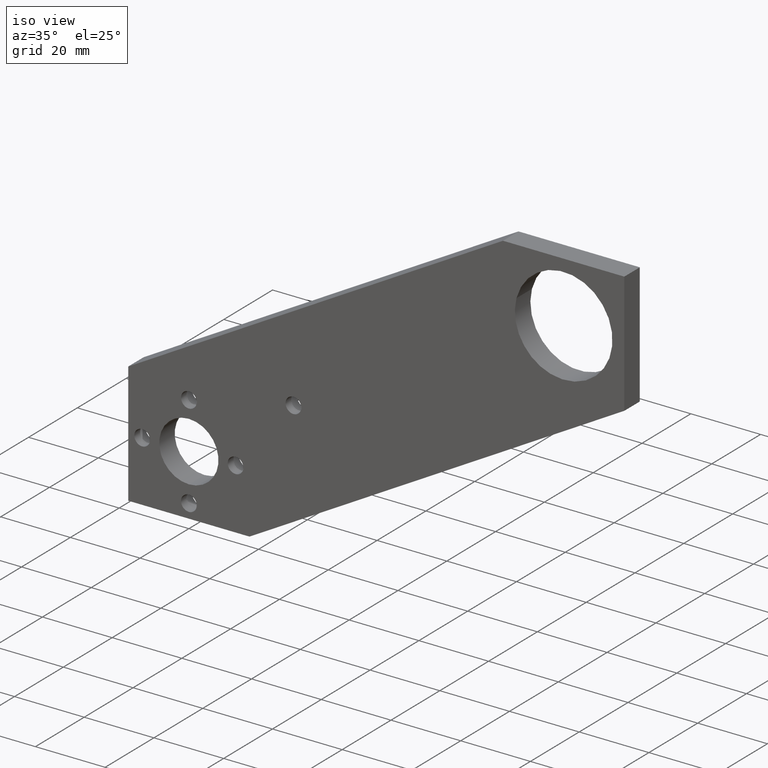
[diagram: clean part render]
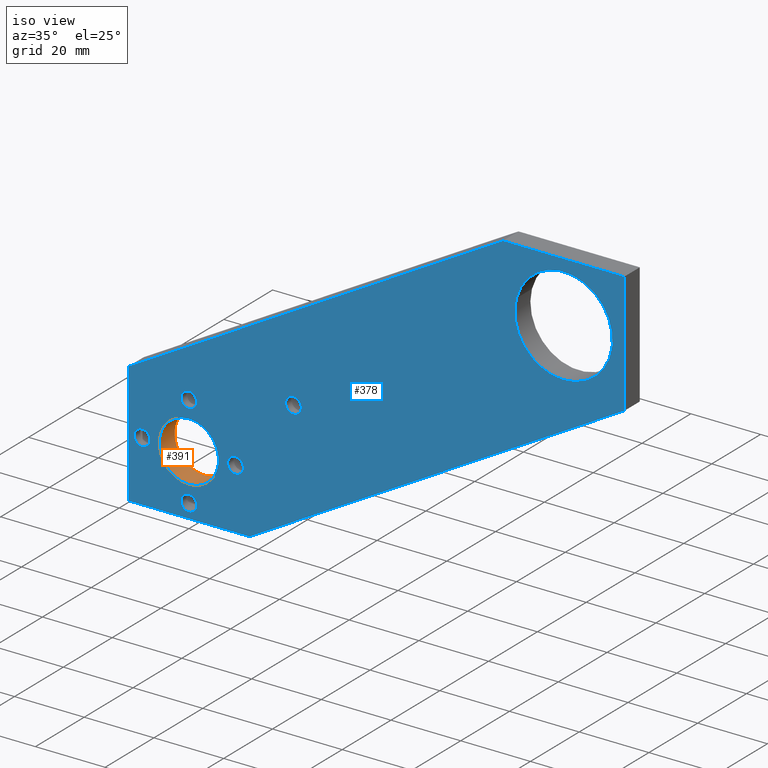
[diagram: same view with the hole feature highlighted: cylindrical wall and planar end face, labeled with their STEP entity ids]
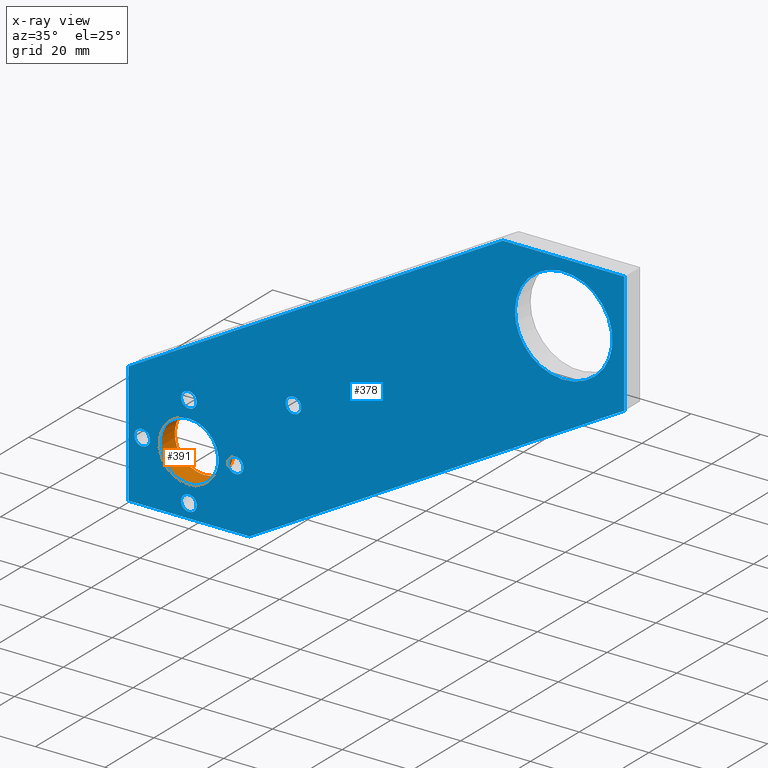
[diagram: x-ray of the same camera — body ghosted, the hole faces saturated]
A machine part, iso view. The highlighted faces form one hole feature of diameter 17 mm: the cylindrical wall (entity #391, orange) and its adjacent planar end face (entity #378, blue) — they share a circular edge in the B-rep.
The next image is the same camera in x-ray (body ghosted, the hole faces saturated) — the bore reads through the body.
Wall:
#85=FACE_BOUND('',#156,.T.);
#112=FACE_OUTER_BOUND('',#155,.T.);
#155=EDGE_LOOP('',(#324));
#156=EDGE_LOOP('',(#325));
#186=CIRCLE('',#419,8.5);
#202=CIRCLE('',#448,8.5);
#216=VERTEX_POINT('',#606);
#235=VERTEX_POINT('',#659);
#252=EDGE_CURVE('',#216,#216,#186,.T.);
#273=EDGE_CURVE('',#235,#235,#202,.T.);
#324=ORIENTED_EDGE('',*,*,#273,.T.);
#325=ORIENTED_EDGE('',*,*,#252,.F.);
#376=CYLINDRICAL_SURFACE('',#447,8.5);
#391=ADVANCED_FACE('',(#112,#85),#376,.F.);
#419=AXIS2_PLACEMENT_3D('',#607,#485,#486);
#447=AXIS2_PLACEMENT_3D('',#658,#546,#547);
#448=AXIS2_PLACEMENT_3D('',#660,#548,#549);
#485=DIRECTION('center_axis',(0.,1.,0.));
#486=DIRECTION('ref_axis',(0.,0.,1.));
#546=DIRECTION('center_axis',(0.,-1.,0.));
#547=DIRECTION('ref_axis',(0.,0.,-1.));
#548=DIRECTION('center_axis',(0.,1.,0.));
#549=DIRECTION('ref_axis',(0.,0.,1.));
#606=CARTESIAN_POINT('',(0.,0.,-8.5));
#607=CARTESIAN_POINT('Origin',(0.,0.,0.));
#658=CARTESIAN_POINT('Origin',(0.,6.35,0.));
#659=CARTESIAN_POINT('',(0.,6.35,-8.5));
#660=CARTESIAN_POINT('Origin',(0.,6.35,0.));
End face:
#18=LINE('',#586,#36);
#19=LINE('',#588,#37);
#20=LINE('',#590,#38);
#21=LINE('',#592,#39);
#22=LINE('',#594,#40);
#23=LINE('',#595,#41);
#36=VECTOR('',#469,1000.);
#37=VECTOR('',#470,1000.);
#38=VECTOR('',#471,1000.);
#39=VECTOR('',#472,1000.);
#40=VECTOR('',#473,10.);
#41=VECTOR('',#474,10.);
#54=PLANE('',#413);
#68=FACE_BOUND('',#126,.T.);
#69=FACE_BOUND('',#127,.T.);
#70=FACE_BOUND('',#128,.T.);
#71=FACE_BOUND('',#129,.T.);
#72=FACE_BOUND('',#130,.T.);
#73=FACE_BOUND('',#131,.T.);
#74=FACE_BOUND('',#132,.T.);
#99=FACE_OUTER_BOUND('',#125,.T.);
#125=EDGE_LOOP('',(#283,#284,#285,#286,#287,#288));
#126=EDGE_LOOP('',(#289));
#127=EDGE_LOOP('',(#290));
#128=EDGE_LOOP('',(#291));
#129=EDGE_LOOP('',(#292));
#130=EDGE_LOOP('',(#293));
#131=EDGE_LOOP('',(#294));
#132=EDGE_LOOP('',(#295));
#179=CIRCLE('',#411,14.);
#181=CIRCLE('',#414,2.25);
#182=CIRCLE('',#415,2.25);
#183=CIRCLE('',#416,2.25);
#184=CIRCLE('',#417,2.25);
#185=CIRCLE('',#418,2.25);
#186=CIRCLE('',#419,8.5);
#203=VERTEX_POINT('',#579);
#205=VERTEX_POINT('',#584);
#206=VERTEX_POINT('',#585);
#207=VERTEX_POINT('',#587);
#208=VERTEX_POINT('',#589);
#209=VERTEX_POINT('',#591);
#210=VERTEX_POINT('',#593);
#211=VERTEX_POINT('',#596);
#212=VERTEX_POINT('',#598);
#213=VERTEX_POINT('',#600);
#214=VERTEX_POINT('',#602);
#215=VERTEX_POINT('',#604);
#216=VERTEX_POINT('',#606);
#239=EDGE_CURVE('',#203,#203,#179,.T.);
#241=EDGE_CURVE('',#205,#206,#18,.T.);
#242=EDGE_CURVE('',#207,#205,#19,.T.);
#243=EDGE_CURVE('',#208,#207,#20,.T.);
#244=EDGE_CURVE('',#209,#208,#21,.T.);
#245=EDGE_CURVE('',#209,#210,#22,.T.);
#246=EDGE_CURVE('',#210,#206,#23,.T.);
#247=EDGE_CURVE('',#211,#211,#181,.T.);
#248=EDGE_CURVE('',#212,#212,#182,.T.);
#249=EDGE_CURVE('',#213,#213,#183,.T.);
#250=EDGE_CURVE('',#214,#214,#184,.T.);
#251=EDGE_CURVE('',#215,#215,#185,.T.);
#252=EDGE_CURVE('',#216,#216,#186,.T.);
#283=ORIENTED_EDGE('',*,*,#241,.F.);
#284=ORIENTED_EDGE('',*,*,#242,.F.);
#285=ORIENTED_EDGE('',*,*,#243,.F.);
#286=ORIENTED_EDGE('',*,*,#244,.F.);
#287=ORIENTED_EDGE('',*,*,#245,.T.);
#288=ORIENTED_EDGE('',*,*,#246,.T.);
#289=ORIENTED_EDGE('',*,*,#247,.T.);
#290=ORIENTED_EDGE('',*,*,#248,.T.);
#291=ORIENTED_EDGE('',*,*,#249,.T.);
#292=ORIENTED_EDGE('',*,*,#250,.T.);
#293=ORIENTED_EDGE('',*,*,#251,.T.);
#294=ORIENTED_EDGE('',*,*,#239,.T.);
#295=ORIENTED_EDGE('',*,*,#252,.T.);
#378=ADVANCED_FACE('',(#99,#68,#69,#70,#71,#72,#73,#74),#54,.F.);
#411=AXIS2_PLACEMENT_3D('',#580,#463,#464);
#413=AXIS2_PLACEMENT_3D('',#583,#467,#468);
#414=AXIS2_PLACEMENT_3D('',#597,#475,#476);
#415=AXIS2_PLACEMENT_3D('',#599,#477,#478);
#416=AXIS2_PLACEMENT_3D('',#601,#479,#480);
#417=AXIS2_PLACEMENT_3D('',#603,#481,#482);
#418=AXIS2_PLACEMENT_3D('',#605,#483,#484);
#419=AXIS2_PLACEMENT_3D('',#607,#485,#486);
#463=DIRECTION('center_axis',(0.,1.,0.));
#464=DIRECTION('ref_axis',(-1.,0.,0.));
#467=DIRECTION('center_axis',(0.,1.,0.));
#468=DIRECTION('ref_axis',(0.,0.,1.));
#469=DIRECTION('',(0.868496911613889,0.,0.49569457785731));
#470=DIRECTION('',(0.,0.,1.));
#471=DIRECTION('',(-1.,0.,0.));
#472=DIRECTION('',(-0.868496911613889,0.,-0.49569457785731));
#473=DIRECTION('',(0.,0.,1.));
#474=DIRECTION('',(-1.,0.,0.));
#475=DIRECTION('center_axis',(0.,1.,0.));
#476=DIRECTION('ref_axis',(0.,0.,1.));
#477=DIRECTION('center_axis',(0.,1.,0.));
#478=DIRECTION('ref_axis',(0.,0.,1.));
#479=DIRECTION('center_axis',(0.,1.,0.));
#480=DIRECTION('ref_axis',(0.,0.,1.));
#481=DIRECTION('center_axis',(0.,1.,0.));
#482=DIRECTION('ref_axis',(0.,0.,1.));
#483=DIRECTION('center_axis',(0.,1.,0.));
#484=DIRECTION('ref_axis',(0.,0.,1.));
#485=DIRECTION('center_axis',(0.,1.,0.));
#486=DIRECTION('ref_axis',(0.,0.,1.));
#579=CARTESIAN_POINT('',(103.705750815427,0.,47.9153517112262));
#580=CARTESIAN_POINT('Origin',(107.541888,0.,61.3795283106746));
#583=CARTESIAN_POINT('Origin',(107.561888,0.,88.7219926197627));
#584=CARTESIAN_POINT('',(-17.4,0.,17.4));
#585=CARTESIAN_POINT('',(90.141888,0.,78.7795283106746));
#586=CARTESIAN_POINT('',(-17.4,0.,17.4));
#587=CARTESIAN_POINT('',(-17.4,0.,-17.4));
#588=CARTESIAN_POINT('',(-17.4,0.,17.4));
#589=CARTESIAN_POINT('',(17.4,0.,-17.4));
#590=CARTESIAN_POINT('',(-17.4,0.,-17.4));
#591=CARTESIAN_POINT('',(124.941888,0.,43.9795283106746));
#592=CARTESIAN_POINT('',(17.4,0.,-17.4));
#593=CARTESIAN_POINT('',(124.941888,0.,78.7795283106746));
#594=CARTESIAN_POINT('',(124.941888,0.,43.9795283106746));
#595=CARTESIAN_POINT('',(124.941888,0.,78.7795283106746));
#596=CARTESIAN_POINT('',(0.,0.,-11.15));
#597=CARTESIAN_POINT('Origin',(0.,0.,-13.4));
#598=CARTESIAN_POINT('',(-13.4,0.,2.25000000000005));
#599=CARTESIAN_POINT('Origin',(-13.4,0.,4.6785849940498E-14));
#600=CARTESIAN_POINT('',(0.,0.,15.65));
#601=CARTESIAN_POINT('Origin',(0.,0.,13.4));
#602=CARTESIAN_POINT('',(13.4,0.,2.24999999999986));
#603=CARTESIAN_POINT('Origin',(13.4,0.,-1.40357549821494E-13));
#604=CARTESIAN_POINT('',(30.,0.,22.25));
#605=CARTESIAN_POINT('Origin',(30.,0.,20.));
#606=CARTESIAN_POINT('',(0.,0.,-8.5));
#607=CARTESIAN_POINT('Origin',(0.,0.,0.));